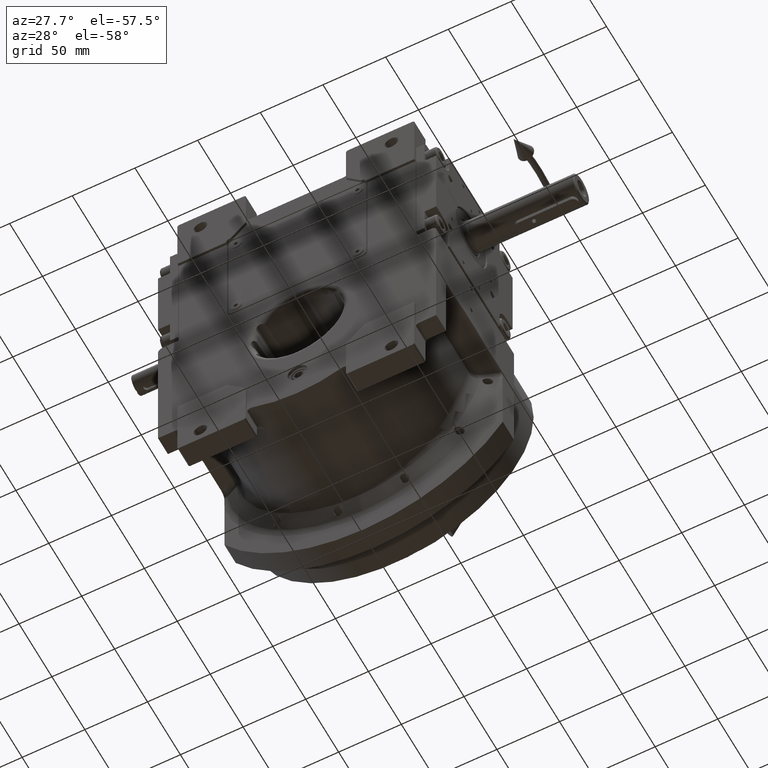
[diagram: clean part render]
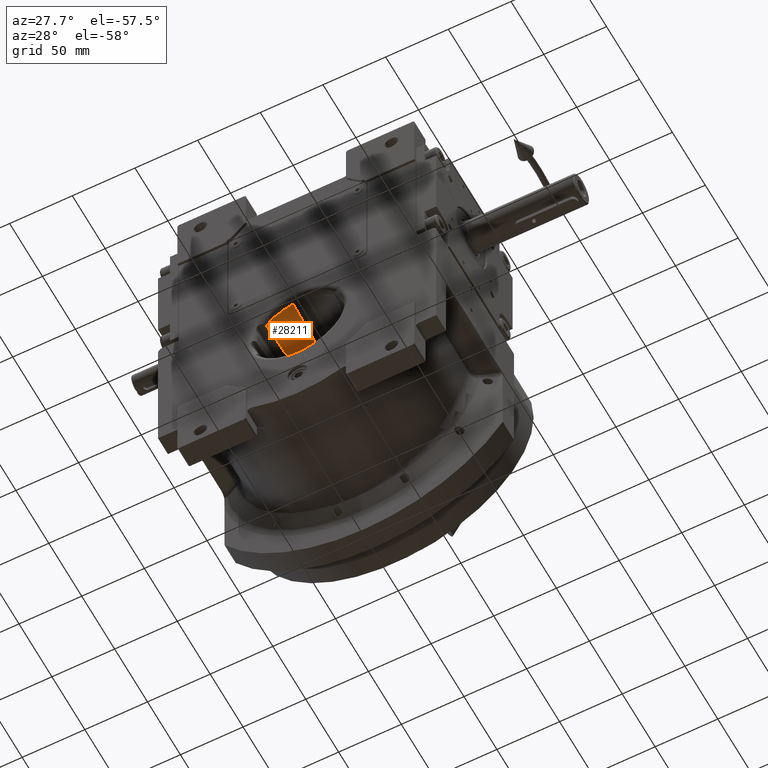
[diagram: same view with one face highlighted and labeled with its STEP entity id]
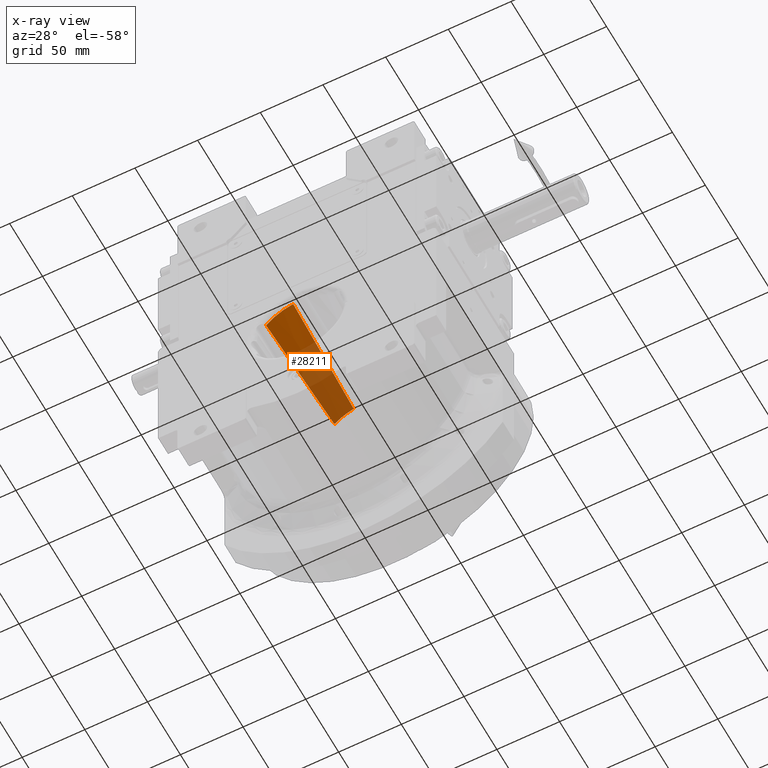
[diagram: x-ray of the same camera — body ghosted, the highlighted face saturated]
A machine part, auxiliary view. The second image highlights one B-rep face of the part: STEP entity #28211.
The next image is the same camera in x-ray: the body ghosted, the highlighted face saturated — about 61% of this face is hidden behind the body in this view.
In plain terms, the highlighted conical surface has half-angle 2.224 deg.
Its self-contained STEP definition (entity closure, byte-faithful):
#17 = CARTESIAN_POINT ( 'NONE',  ( -24.12397273183305302, 14.69085707344197900, 22.30330539787410515 ) ) ;
#1145 = CARTESIAN_POINT ( 'NONE',  ( -6.545123414946812268, -22.43255883371456960, 33.66314325872906466 ) ) ;
#1688 = DIRECTION ( 'NONE',  ( 0.000000000000000000, -1.000000000000000000, 1.836909530733564901E-16 ) ) ;
#2508 = CARTESIAN_POINT ( 'NONE',  ( -25.95599512364559658, -23.90877444573143151, 22.50037177851915260 ) ) ;
#3118 = VERTEX_POINT ( 'NONE', #27319 ) ;
#3140 = EDGE_CURVE ( 'NONE', #3118, #64952, #17390, .T. ) ;
#3287 = AXIS2_PLACEMENT_3D ( 'NONE', #31199, #10981, #15515 ) ;
#5697 = CARTESIAN_POINT ( 'NONE',  ( -6.605836467556223113, -19.91655888794579354, 33.55167512886922054 ) ) ;
#6037 = CARTESIAN_POINT ( 'NONE',  ( -6.020151598987471431, -40.89856345233415169, 34.49092710218018709 ) ) ;
#6387 = CARTESIAN_POINT ( 'NONE',  ( -6.506885096314946715, -23.94214980743184285, 33.73025226889717487 ) ) ;
#8325 = EDGE_CURVE ( 'NONE', #48012, #3118, #33372, .T. ) ;
#9128 = CARTESIAN_POINT ( 'NONE',  ( -25.89832868074435268, -22.78085453470795585, 22.49999219110493343 ) ) ;
#10944 = CARTESIAN_POINT ( 'NONE',  ( -7.043924058001458377, 2.395844059239822244, 32.57645760541480939 ) ) ;
#10981 = DIRECTION ( 'NONE',  ( 6.184490354042650607E-15, 1.000000000000000000, -1.077473843992298185E-14 ) ) ;
#11285 = CARTESIAN_POINT ( 'NONE',  ( -6.597009251911162941, -20.28739144563655472, 33.56808874989616953 ) ) ;
#11622 = CARTESIAN_POINT ( 'NONE',  ( -7.436494824040673635, 38.59658209189029066, 31.04537517040879635 ) ) ;
#11758 = B_SPLINE_CURVE_WITH_KNOTS ( 'NONE', 3,
 ( #55565, #55909, #24824, #2508, #9128, #13355, #29040, #23797, #46116, #67375, #50338, #49990, #19583, #45093, #66358, #67036, #34639, #29364, #19238, #45438, #47137, #17, #68752, #25851 ),
 .UNSPECIFIED., .F., .F.,
 ( 4, 2, 1, 2, 2, 1, 1, 1, 1, 1, 1, 1, 1, 1, 2, 2, 4 ),
 ( 0.000000000000000000, 0.2499999999999960032, 0.2812499999999955591, 0.2851562499999955591, 0.2890624999999955591, 0.2968749999999955036, 0.3124999999999956701, 0.3749999999999960032, 0.4374999999999963363, 0.4687499999999965028, 0.4843749999999965583, 0.4921874999999966138, 0.4960937499999966693, 0.4980468749999967248, 0.4990234374999966693, 0.4999999999999966693, 1.000000000000000000 ),
 .UNSPECIFIED. ) ;
#11968 = CARTESIAN_POINT ( 'NONE',  ( -6.668683843327299243, -17.24455031828429341, 33.43349931018661181 ) ) ;
#12296 = ORIENTED_EDGE ( 'NONE', *, *, #3140, .T. ) ;
#12609 = EDGE_CURVE ( 'NONE', #56210, #64952, #46611, .T. ) ;
#13217 = DIRECTION ( 'NONE',  ( 0.000000000000000000, 0.000000000000000000, 1.000000000000000000 ) ) ;
#13355 = CARTESIAN_POINT ( 'NONE',  ( -25.84112447787023825, -21.65130370048159492, 22.49889461834812820 ) ) ;
#14283 = AXIS2_PLACEMENT_3D ( 'NONE', #29771, #19988, #51077 ) ;
#14752 = CARTESIAN_POINT ( 'NONE',  ( -27.31593238095755183, -48.69402850002909844, 22.38019785351225011 ) ) ;
#15515 = DIRECTION ( 'NONE',  ( -0.7234472233214667147, 1.185310840213647527E-14, 0.6903796890613598247 ) ) ;
#15790 = EDGE_LOOP ( 'NONE', ( #20353, #12296, #45129, #53930 ) ) ;
#16503 = CARTESIAN_POINT ( 'NONE',  ( -7.139636768700242442, 8.805876948072151933, 32.30073330044628221 ) ) ;
#16843 = CARTESIAN_POINT ( 'NONE',  ( -7.465572626883200336, 46.61641710001750027, 30.71779199823640027 ) ) ;
#17037 = EDGE_CURVE ( 'NONE', #56210, #48012, #11758, .T. ) ;
#17390 = B_SPLINE_CURVE_WITH_KNOTS ( 'NONE', 3,
 ( #16843, #11622, #59074, #32897, #43706, #16503, #22767, #10944, #22079, #48960, #48615, #60098, #37806, #64637, #38144, #59395, #33590, #11968, #53493, #5697, #54177, #11285, #54863, #1145, #6387, #22432, #6037, #44050 ),
 .UNSPECIFIED., .F., .F.,
 ( 4, 2, 2, 1, 1, 1, 1, 1, 2, 2, 2, 1, 1, 2, 2, 1, 2, 4 ),
 ( 0.000000000000000000, 0.2500000000000021094, 0.3750000000000031641, 0.4375000000000036637, 0.4687500000000039413, 0.4843750000000041078, 0.4921875000000041633, 0.4960937500000041633, 0.4980468750000042188, 0.5000000000000042188, 0.6250000000000043299, 0.6875000000000044409, 0.6953125000000044409, 0.6992187500000044409, 0.7031250000000044409, 0.7187500000000043299, 0.7500000000000037748, 1.000000000000000000 ),
 .UNSPECIFIED. ) ;
#18471 = CARTESIAN_POINT ( 'NONE',  ( -5.723853692384750502, -48.69402850002909844, 34.84639029672330679 ) ) ;
#19238 = CARTESIAN_POINT ( 'NONE',  ( -24.85328262468540572, -1.176221860228127802, 22.41477066934625384 ) ) ;
#19583 = CARTESIAN_POINT ( 'NONE',  ( -25.17767317646472236, -8.134360110603740424, 22.45791745373316672 ) ) ;
#19988 = DIRECTION ( 'NONE',  ( 0.000000000000000000, 1.000000000000000000, 0.000000000000000000 ) ) ;
#20353 = ORIENTED_EDGE ( 'NONE', *, *, #8325, .T. ) ;
#22079 = CARTESIAN_POINT ( 'NONE',  ( -7.015980686976826419, 0.6730493466164297889, 32.65091026506441096 ) ) ;
#22432 = CARTESIAN_POINT ( 'NONE',  ( -6.271527082534446684, -32.98277519893132137, 34.13290973774196146 ) ) ;
#22767 = CARTESIAN_POINT ( 'NONE',  ( -7.097539557566140189, 5.844536192231387872, 32.42777577455985494 ) ) ;
#23797 = CARTESIAN_POINT ( 'NONE',  ( -25.82246390020075211, -21.28232574530120402, 22.49850229101428312 ) ) ;
#24824 = CARTESIAN_POINT ( 'NONE',  ( -26.42060736472807037, -32.92053605780803593, 22.49823645871132527 ) ) ;
#25851 = CARTESIAN_POINT ( 'NONE',  ( -22.86960190519749858, 46.61641710001750027, 21.82427154779684741 ) ) ;
#27319 = CARTESIAN_POINT ( 'NONE',  ( -7.465572626883200336, 46.61641710001750027, 30.71779199823640027 ) ) ;
#28202 = CARTESIAN_POINT ( 'NONE',  ( 0.000000000000000000, 834.8749999998768772, -1.415119829553997709E-13 ) ) ;
#28211 = ADVANCED_FACE ( 'NONE', ( #60990 ), #43069, .F. ) ;
#29040 = CARTESIAN_POINT ( 'NONE',  ( -25.82842384740889230, -21.40025213427811934, 22.49863301333086696 ) ) ;
#29364 = CARTESIAN_POINT ( 'NONE',  ( -24.85768018150244174, -1.271834121313870636, 22.41543876716729145 ) ) ;
#29771 = CARTESIAN_POINT ( 'NONE',  ( 1.065814103640149963E-14, -48.69402850002909844, 0.000000000000000000 ) ) ;
#31199 = CARTESIAN_POINT ( 'NONE',  ( -5.329070518200749816E-15, 46.61641710001710237, 3.552713678800499352E-15 ) ) ;
#32897 = CARTESIAN_POINT ( 'NONE',  ( -7.264801888010843811, 18.69828851112387724, 31.87897152083906605 ) ) ;
#33372 = CIRCLE ( 'NONE', #3287, 31.61198380194111124 ) ;
#33590 = CARTESIAN_POINT ( 'NONE',  ( -6.717666623281026261, -15.03979163426634891, 33.33633980526321494 ) ) ;
#34639 = CARTESIAN_POINT ( 'NONE',  ( -24.86794407551523989, -1.494847327192414976, 22.41698871864194942 ) ) ;
#37806 = CARTESIAN_POINT ( 'NONE',  ( -6.989352234522360874, -0.9257628673331992353, 32.72010995928752664 ) ) ;
#38144 = CARTESIAN_POINT ( 'NONE',  ( -6.918618852143947784, -5.111746348028315623, 32.90143907804457513 ) ) ;
#43069 = CONICAL_SURFACE ( 'NONE', #50908, 1.000000000000000000, 0.03881544608146950126 ) ;
#43706 = CARTESIAN_POINT ( 'NONE',  ( -7.218778195337935522, 14.73565036317008570, 32.04721890751191893 ) ) ;
#44050 = CARTESIAN_POINT ( 'NONE',  ( -5.723853692384750502, -48.69402850002909844, 34.84639029672330679 ) ) ;
#45093 = CARTESIAN_POINT ( 'NONE',  ( -25.01204819499932341, -4.605542411084015519, 22.43743319472509512 ) ) ;
#45129 = ORIENTED_EDGE ( 'NONE', *, *, #12609, .F. ) ;
#45438 = CARTESIAN_POINT ( 'NONE',  ( -24.85035119903206535, -1.112472536648153820, 22.41432441925469021 ) ) ;
#46116 = CARTESIAN_POINT ( 'NONE',  ( -25.80416658519532902, -20.91999557245248198, 22.49808085315071793 ) ) ;
#46611 = CIRCLE ( 'NONE', #14283, 35.31336033009884545 ) ;
#47137 = CARTESIAN_POINT ( 'NONE',  ( -24.84883317504790412, -1.079452833632142061, 22.41409285190225376 ) ) ;
#48012 = VERTEX_POINT ( 'NONE', #58192 ) ;
#48615 = CARTESIAN_POINT ( 'NONE',  ( -6.994523957334219055, -0.6183679705321875053, 32.70679752970342946 ) ) ;
#48960 = CARTESIAN_POINT ( 'NONE',  ( -7.001723833722601320, -0.1879601712271008751, 32.68816393540910781 ) ) ;
#49990 = CARTESIAN_POINT ( 'NONE',  ( -25.41640791755143880, -13.11549991824473516, 22.48053801942943863 ) ) ;
#50338 = CARTESIAN_POINT ( 'NONE',  ( -25.63379664472327235, -17.52649174368558604, 22.49279951270645839 ) ) ;
#50908 = AXIS2_PLACEMENT_3D ( 'NONE', #28202, #1688, #13217 ) ;
#51077 = DIRECTION ( 'NONE',  ( -0.7735296818432539911, 0.000000000000000000, 0.6337600739297750696 ) ) ;
#53493 = CARTESIAN_POINT ( 'NONE',  ( -6.614463825880844361, -19.55262967216677339, 33.53557136036147313 ) ) ;
#53930 = ORIENTED_EDGE ( 'NONE', *, *, #17037, .T. ) ;
#54177 = CARTESIAN_POINT ( 'NONE',  ( -6.600070150408666514, -20.15906628370672493, 33.56240810425131116 ) ) ;
#54863 = CARTESIAN_POINT ( 'NONE',  ( -6.581892172300127797, -20.91873774729681301, 33.59604451296172556 ) ) ;
#55565 = CARTESIAN_POINT ( 'NONE',  ( -27.31593238095755183, -48.69402850002909844, 22.38019785351225011 ) ) ;
#55909 = CARTESIAN_POINT ( 'NONE',  ( -26.85700044216910598, -40.84851846064513836, 22.45959300183226404 ) ) ;
#56210 = VERTEX_POINT ( 'NONE', #14752 ) ;
#58192 = CARTESIAN_POINT ( 'NONE',  ( -22.86960190519749858, 46.61641710001750027, 21.82427154779684741 ) ) ;
#59074 = CARTESIAN_POINT ( 'NONE',  ( -7.383397213329371489, 30.61457056865113557, 31.37676902628926001 ) ) ;
#59395 = CARTESIAN_POINT ( 'NONE',  ( -6.842704596624226809, -9.117395876313956649, 33.07622035125862681 ) ) ;
#60098 = CARTESIAN_POINT ( 'NONE',  ( -6.991422968451028730, -0.8028076788874538572, 32.71478479598469136 ) ) ;
#60990 = FACE_OUTER_BOUND ( 'NONE', #15790, .T. ) ;
#64637 = CARTESIAN_POINT ( 'NONE',  ( -6.988349161636569384, -0.9852262048118237692, 32.72268554647107663 ) ) ;
#64952 = VERTEX_POINT ( 'NONE', #18471 ) ;
#66358 = CARTESIAN_POINT ( 'NONE',  ( -24.92960939534346210, -2.830628602781669834, 22.42603774382786952 ) ) ;
#67036 = CARTESIAN_POINT ( 'NONE',  ( -24.88848357391307076, -1.940545458994913597, 22.42005283000798954 ) ) ;
#67375 = CARTESIAN_POINT ( 'NONE',  ( -25.76759777127056594, -20.19458487257341517, 22.49715182439925698 ) ) ;
#68752 = CARTESIAN_POINT ( 'NONE',  ( -23.46596071509765835, 30.57923326970892575, 22.10146558095334157 ) ) ;